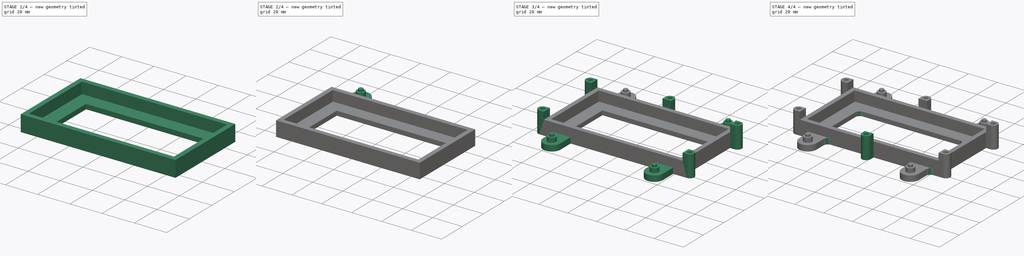
[diagram: build sequence overview — one tinted view per stage of 4, left to right]
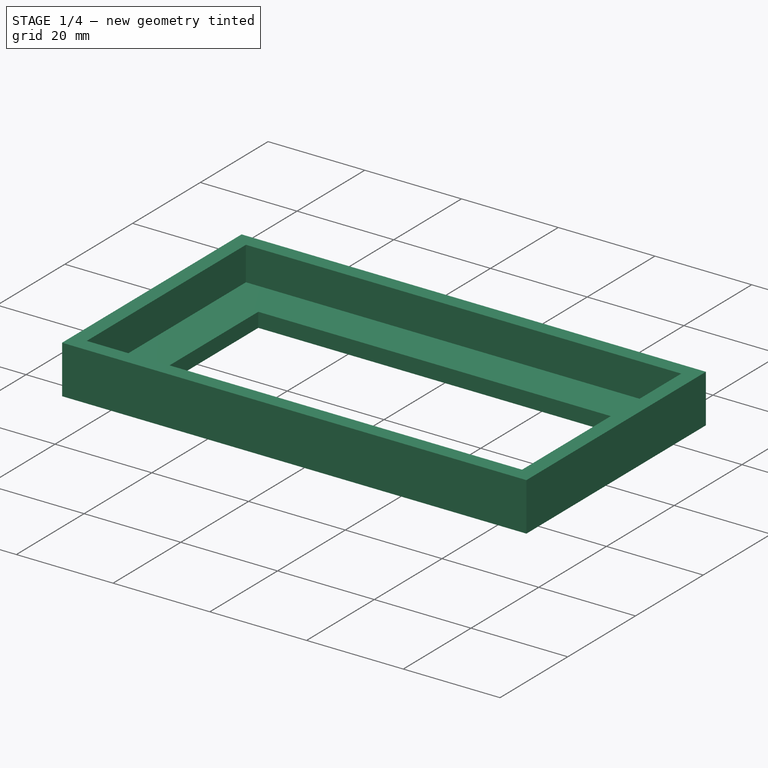
[diagram: stage 1 of 4 — iso view after this stage's code; geometry added in this stage tinted green]
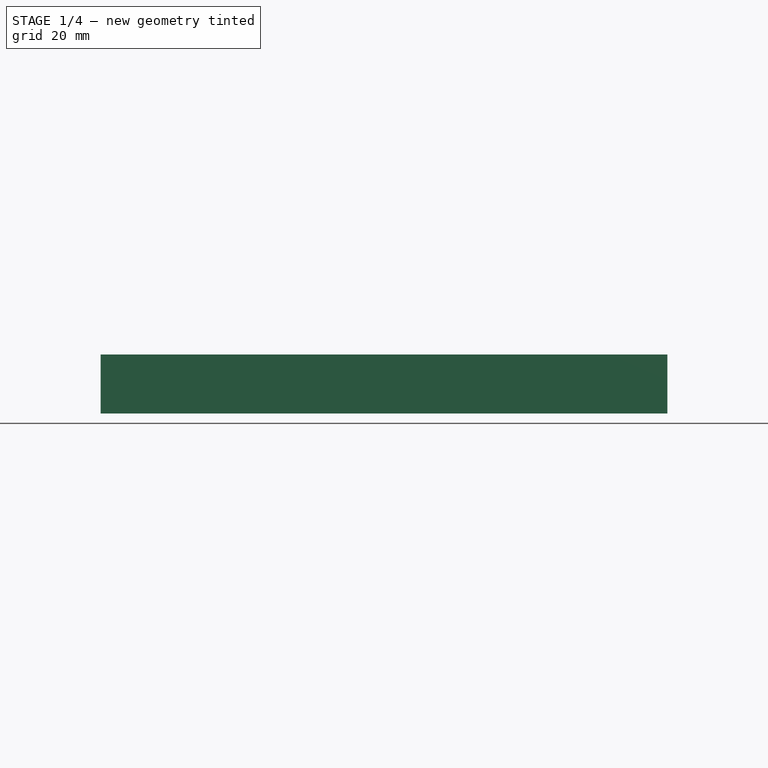
[diagram: stage 1 of 4 — front view after this stage's code; geometry added in this stage tinted green]
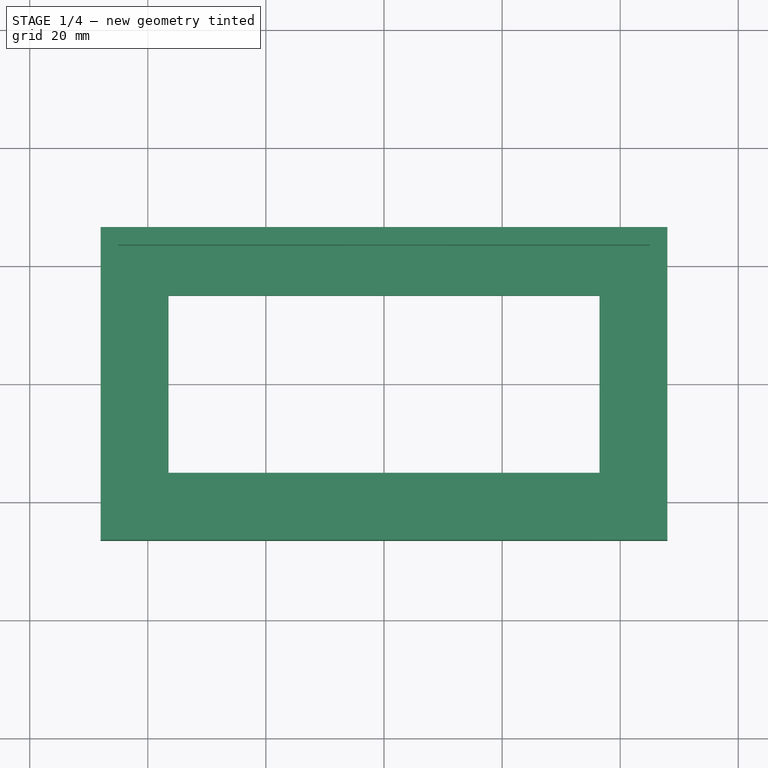
[diagram: stage 1 of 4 — top view after this stage's code; geometry added in this stage tinted green]
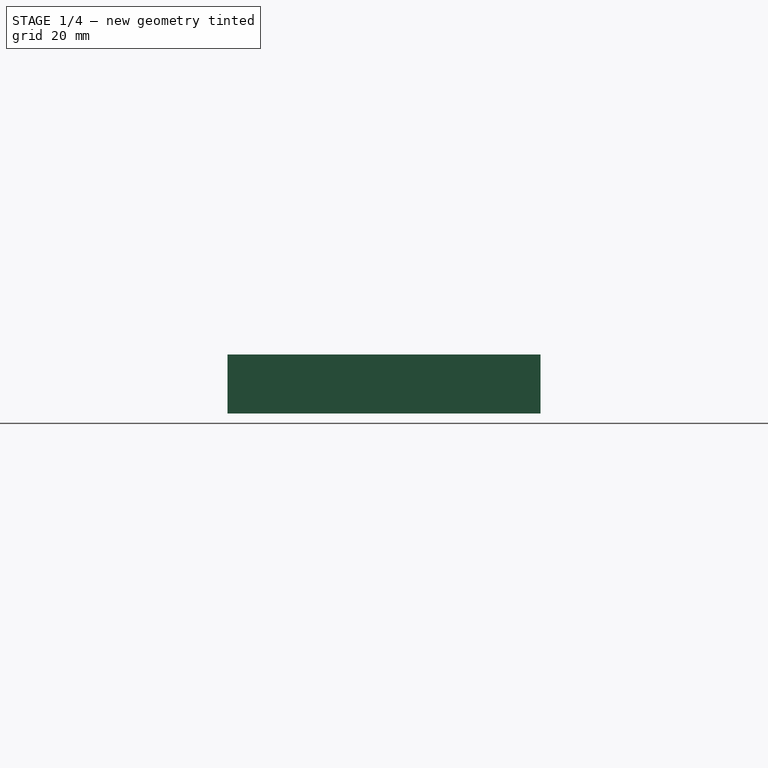
[diagram: stage 1 of 4 — right view after this stage's code; geometry added in this stage tinted green]
FCSTD DOCUMENT  (FreeCAD 0.18R4 (GitTag))
Label: quad_robot_body_bottom
License: All rights reserved
LicenseURL: http://en.wikipedia.org/wiki/All_rights_reserved
objects: Sketcher::SketchObject×7, PartDesign::Pad×6, PartDesign::Mirrored×3, PartDesign::Pocket×1, PartDesign::MultiTransform×1, PartDesign::Fillet×1, PartDesign::Body×1, App::Part×1
note: 27 computed .brp shape members not serialized (recipe doc carries the construction recipe); baked Part::Feature solids carry a one-line shape summary decoded from their .brp

FEATURE [Sketcher::SketchObject] Sketch
  MapMode = 5
  Support = -> [XY_Plane001]
  sketch-geometry (8):
    g0: LineSegment StartX=-48 StartY=26.5 StartZ=0 EndX=48 EndY=26.5 EndZ=0
    g1: LineSegment StartX=48 StartY=26.5 StartZ=0 EndX=48 EndY=-26.5 EndZ=0
    g2: LineSegment StartX=48 StartY=-26.5 StartZ=0 EndX=-48 EndY=-26.5 EndZ=0
    g3: LineSegment StartX=-48 StartY=-26.5 StartZ=0 EndX=-48 EndY=26.5 EndZ=0
    g4: LineSegment StartX=-36.5 StartY=15 StartZ=0 EndX=36.5 EndY=15 EndZ=0
    g5: LineSegment StartX=36.5 StartY=15 StartZ=0 EndX=36.5 EndY=-15 EndZ=0
    g6: LineSegment StartX=36.5 StartY=-15 StartZ=0 EndX=-36.5 EndY=-15 EndZ=0
    g7: LineSegment StartX=-36.5 StartY=-15 StartZ=0 EndX=-36.5 EndY=15 EndZ=0
  constraints (22):
    c: Coincident(g0,g1)
    c: Coincident(g1,g2)
    c: Coincident(g2,g3)
    c: Coincident(g3,g0)
    c: Horizontal(g0)
    c: Horizontal(g2)
    c: Vertical(g1)
    c: Vertical(g3)
    c: Symmetric(g0,g1,g-1)
    c: DistanceX(g0,g0) = 96
    c: DistanceY(g1,g1) = 53
    c: Coincident(g4,g5)
    c: Coincident(g5,g6)
    c: Coincident(g6,g7)
    c: Coincident(g7,g4)
    c: Horizontal(g4)
    c: Horizontal(g6)
    c: Vertical(g5)
    c: Vertical(g7)
    c: Symmetric(g4,g5,g-1)
    c: DistanceX(g4,g4) = 73
    c: DistanceY(g5,g5) = 30
FEATURE [PartDesign::Pad] Pad
  Length = 10
  Length2 = 100
  Profile = -> Sketch
  Refine = true
  Type = 0
FEATURE [Sketcher::SketchObject] Sketch001
  MapMode = 5
  Placement = pos=(0,0,10) rot=(0,0,1;0rad)
  Support = -> [Pad]
  sketch-geometry (4):
    g0: LineSegment StartX=-45 StartY=23.5 StartZ=0 EndX=45 EndY=23.5 EndZ=0
    g1: LineSegment StartX=45 StartY=23.5 StartZ=0 EndX=45 EndY=-23.5 EndZ=0
    g2: LineSegment StartX=45 StartY=-23.5 StartZ=0 EndX=-45 EndY=-23.5 EndZ=0
    g3: LineSegment StartX=-45 StartY=-23.5 StartZ=0 EndX=-45 EndY=23.5 EndZ=0
  constraints (11):
    c: Coincident(g0,g1)
    c: Coincident(g1,g2)
    c: Coincident(g2,g3)
    c: Coincident(g3,g0)
    c: Horizontal(g0)
    c: Horizontal(g2)
    c: Vertical(g1)
    c: Vertical(g3)
    c: DistanceX(g0,g0) = 90
    c: DistanceY(g1,g1) = 47
    c: Symmetric(g0,g1,g-1)
FEATURE [PartDesign::Pocket] Pocket
  BaseFeature = -> Pad
  Length = 7
  Length2 = 100
  Profile = -> Sketch001
  Refine = true
  Type = 0
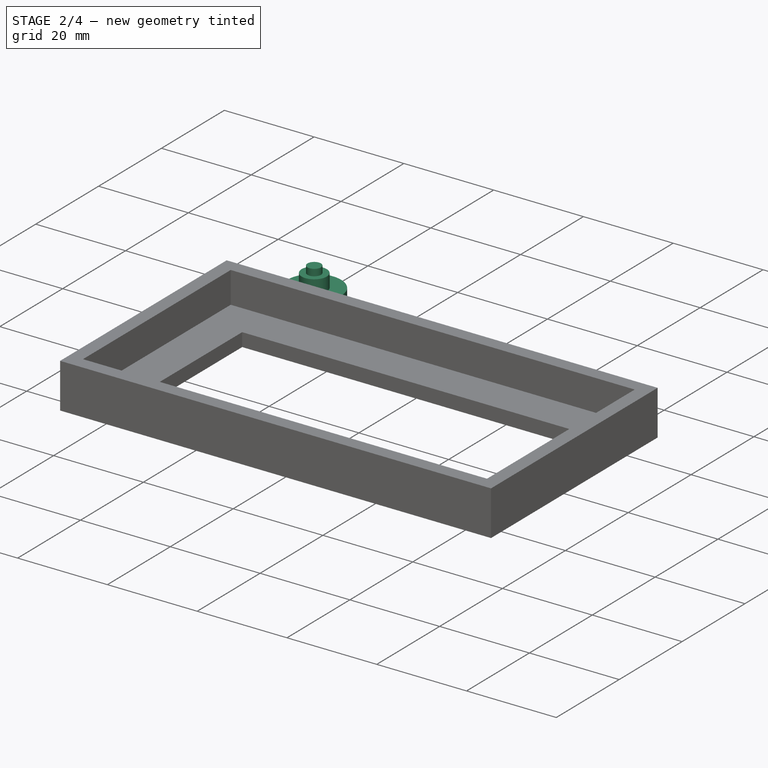
[diagram: stage 2 of 4 — iso view after this stage's code; geometry added in this stage tinted green]
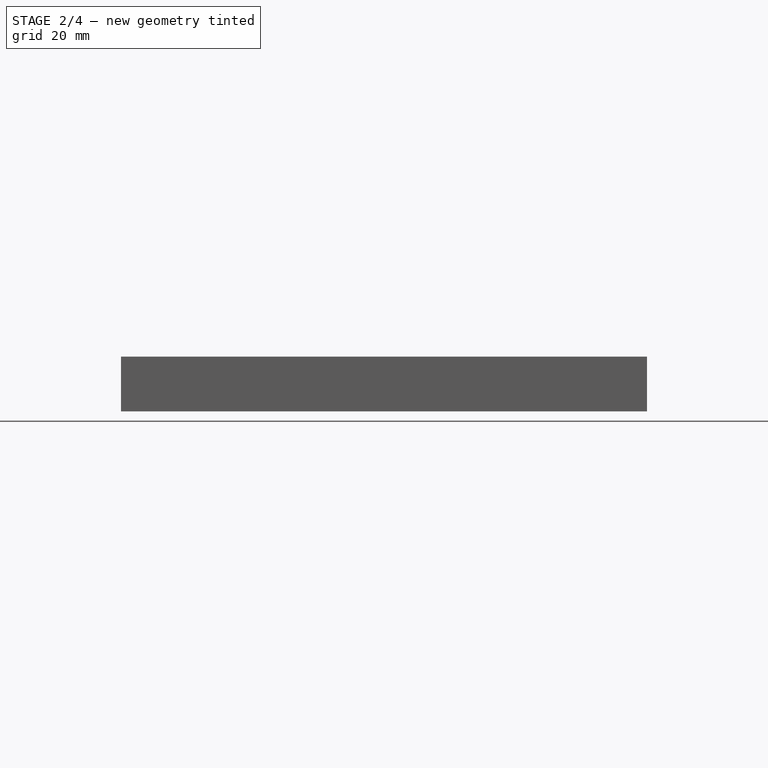
[diagram: stage 2 of 4 — front view after this stage's code; geometry added in this stage tinted green]
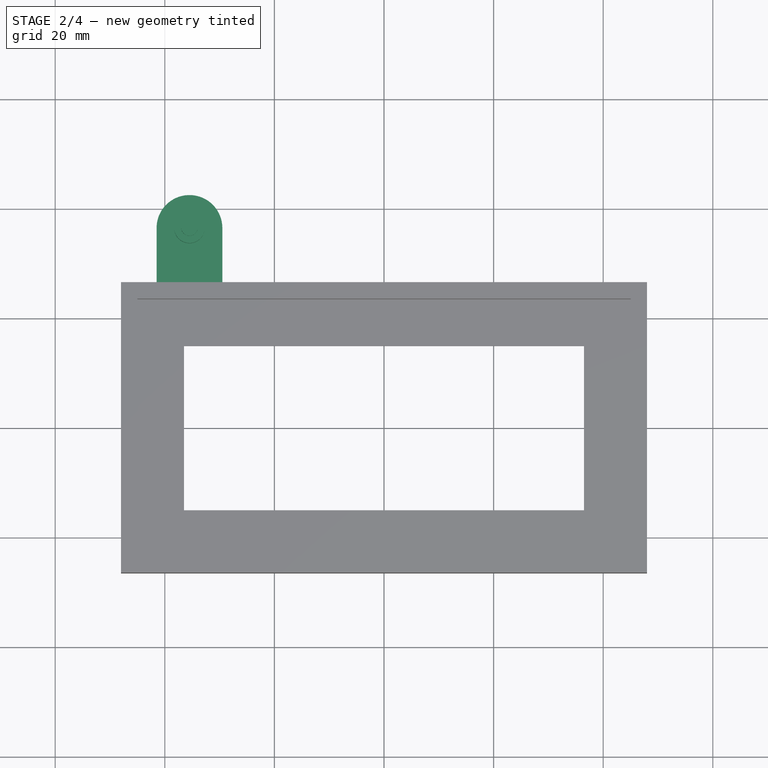
[diagram: stage 2 of 4 — top view after this stage's code; geometry added in this stage tinted green]
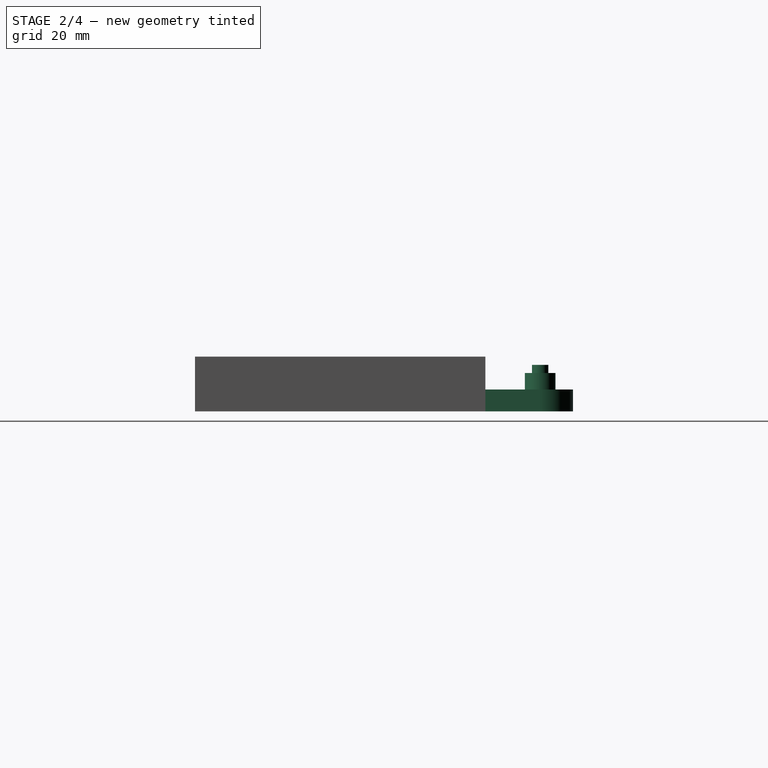
[diagram: stage 2 of 4 — right view after this stage's code; geometry added in this stage tinted green]
FEATURE [Sketcher::SketchObject] Sketch002
  MapMode = 5
  Support = -> [XY_Plane001]
  sketch-geometry (4):
    g0: ArcOfCircle CenterX=-35.5 CenterY=36.5 CenterZ=0 NormalX=0 NormalY=0 NormalZ=1 AngleXU=0 Radius=6 StartAngle=3.41327e-08 EndAngle=3.14159
    g1: LineSegment StartX=-41.5 StartY=36.5 StartZ=0 EndX=-41.5 EndY=24.5 EndZ=0
    g2: LineSegment StartX=-41.5 StartY=24.5 StartZ=0 EndX=-29.5 EndY=24.5 EndZ=0
    g3: LineSegment StartX=-29.5 StartY=24.5 StartZ=0 EndX=-29.5 EndY=36.5 EndZ=0
  constraints (12):
    c: Tangent(g0,g1) = -1.5708
    c: Coincident(g1,g2)
    c: Horizontal(g2)
    c: Coincident(g2,g3)
    c: Coincident(g3,g0)
    c: Vertical(g3)
    c: Tangent(g3,g0)
    c: DistanceX(g0,g-1) = 35.5
    c: DistanceY(g-1,g0) = 36.5
    c: Vertical(g1)
    c: Radius(g0) = 6
    c: DistanceY(g3,g3) = 12
FEATURE [PartDesign::Pad] Pad001
  BaseFeature = -> Pocket
  Length = 4
  Length2 = 100
  Profile = -> Sketch002
  Refine = true
  Type = 0
FEATURE [Sketcher::SketchObject] Sketch003
  ExternalGeometry = -> [Pad001]
  MapMode = 5
  Placement = pos=(0,0,4) rot=(0,0,1;0rad)
  Support = -> [Pad001]
  sketch-geometry (1):
    g0: Circle CenterX=-35.5 CenterY=36.5 CenterZ=0 NormalX=0 NormalY=0 NormalZ=1 AngleXU=0 Radius=2.8
  constraints (2):
    c: Coincident(g0,g-3)
    c: Radius(g0) = 2.8
FEATURE [PartDesign::Pad] Pad002
  BaseFeature = -> Pad001
  Length = 3
  Length2 = 100
  Profile = -> Sketch003
  Refine = true
  Type = 0
FEATURE [Sketcher::SketchObject] Sketch004
  ExternalGeometry = -> [Pad002]
  MapMode = 5
  Placement = pos=(0,0,7) rot=(0,0,1;0rad)
  Support = -> [Pad002]
  sketch-geometry (1):
    g0: Circle CenterX=-35.5 CenterY=36.5 CenterZ=0 NormalX=0 NormalY=0 NormalZ=1 AngleXU=0 Radius=1.5
  constraints (2):
    c: Coincident(g0,g-3)
    c: Radius(g0) = 1.5
FEATURE [PartDesign::Pad] Pad003
  BaseFeature = -> Pad002
  Length = 1.5
  Length2 = 100
  Profile = -> Sketch004
  Refine = true
  Type = 0
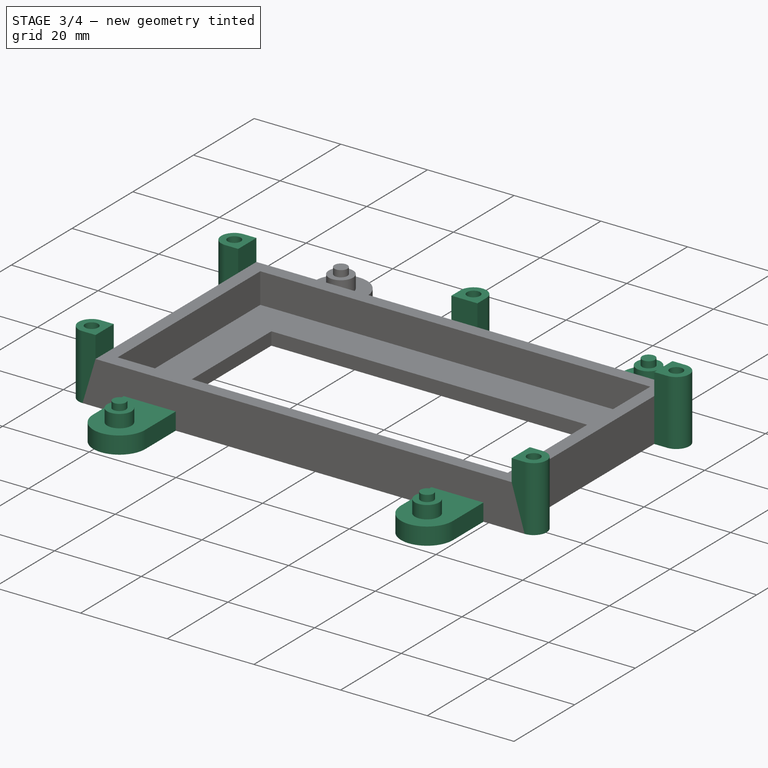
[diagram: stage 3 of 4 — iso view after this stage's code; geometry added in this stage tinted green]
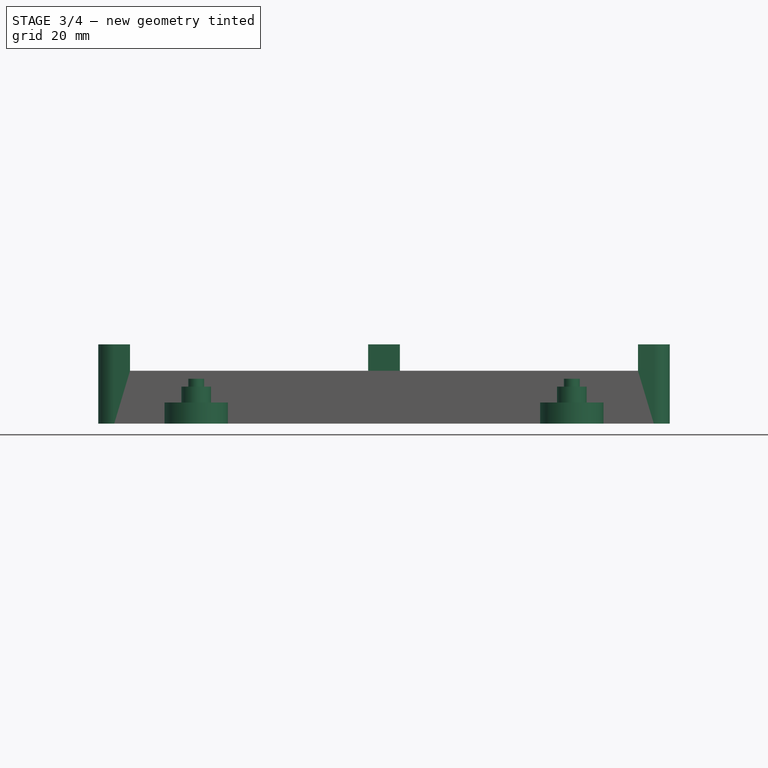
[diagram: stage 3 of 4 — front view after this stage's code; geometry added in this stage tinted green]
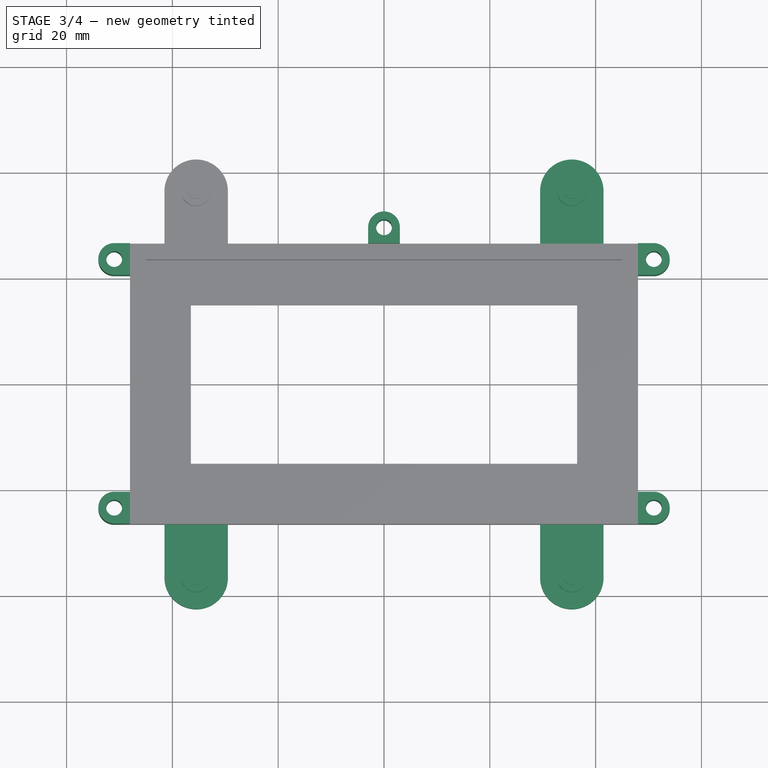
[diagram: stage 3 of 4 — top view after this stage's code; geometry added in this stage tinted green]
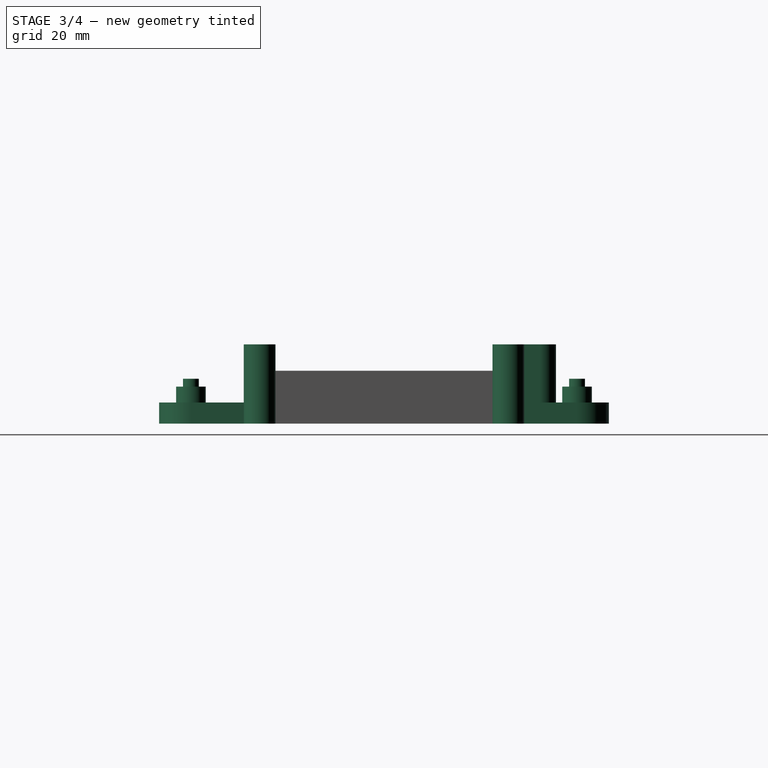
[diagram: stage 3 of 4 — right view after this stage's code; geometry added in this stage tinted green]
FEATURE [Sketcher::SketchObject] Sketch005
  ExternalGeometry = -> [Pad003]
  MapMode = 5
  Support = -> [XY_Plane001]
  sketch-geometry (6):
    g0: LineSegment StartX=-48 StartY=26.5 StartZ=0 EndX=-51 EndY=26.5 EndZ=0
    g1: LineSegment [constr] StartX=-51 StartY=26.5 StartZ=0 EndX=-51 EndY=20.5 EndZ=0
    g2: LineSegment StartX=-51 StartY=20.5 StartZ=0 EndX=-48 EndY=20.5 EndZ=0
    g3: LineSegment StartX=-48 StartY=20.5 StartZ=0 EndX=-48 EndY=26.5 EndZ=0
    g4: ArcOfCircle CenterX=-51 CenterY=23.5 CenterZ=0 NormalX=0 NormalY=0 NormalZ=1 AngleXU=0 Radius=3 StartAngle=1.5708 EndAngle=4.71239
    g5: Circle CenterX=-51 CenterY=23.5 CenterZ=0 NormalX=0 NormalY=0 NormalZ=1 AngleXU=0 Radius=1.5
  constraints (16):
    c: Coincident(g0,g1)
    c: Coincident(g1,g2)
    c: Coincident(g2,g3)
    c: Coincident(g3,g0)
    c: Horizontal(g0)
    c: Horizontal(g2)
    c: Vertical(g1)
    c: Vertical(g3)
    c: Coincident(g0,g-3)
    c: PointOnObject(g4,g1)
    c: Coincident(g4,g1)
    c: Coincident(g4,g0)
    c: Radius(g4) = 3
    c: DistanceX(g0,g0) = 3
    c: Coincident(g5,g4)
    c: Radius(g5) = 1.5
FEATURE [PartDesign::Pad] Pad004
  BaseFeature = -> Pad003
  Length = 15
  Length2 = 100
  Profile = -> Sketch005
  Refine = true
  Type = 0
FEATURE [Sketcher::SketchObject] Sketch006
  ExternalGeometry = -> [Pad004]
  MapMode = 5
  Support = -> [XY_Plane001]
  sketch-geometry (6):
    g0: LineSegment StartX=-3 StartY=26.5 StartZ=0 EndX=3 EndY=26.5 EndZ=0
    g1: LineSegment StartX=3 StartY=26.5 StartZ=0 EndX=3 EndY=29.5 EndZ=0
    g2: LineSegment [constr] StartX=3 StartY=29.5 StartZ=0 EndX=-3 EndY=29.5 EndZ=0
    g3: LineSegment StartX=-3 StartY=29.5 StartZ=0 EndX=-3 EndY=26.5 EndZ=0
    g4: Circle CenterX=0 CenterY=29.5 CenterZ=0 NormalX=0 NormalY=0 NormalZ=1 AngleXU=0 Radius=1.5
    g5: ArcOfCircle CenterX=0 CenterY=29.5 CenterZ=0 NormalX=0 NormalY=0 NormalZ=1 AngleXU=0 Radius=3 StartAngle=2e-16 EndAngle=3.14159
  constraints (16):
    c: Coincident(g0,g1)
    c: Coincident(g1,g2)
    c: Coincident(g2,g3)
    c: Coincident(g3,g0)
    c: Horizontal(g0)
    c: Vertical(g1)
    c: Vertical(g3)
    c: Symmetric(g1,g2,g-2)
    c: Symmetric(g1,g3,g4)
    c: Coincident(g5,g4)
    c: Coincident(g5,g3)
    c: Coincident(g5,g1)
    c: Radius(g5) = 3
    c: DistanceY(g1,g1) = 3
    c: PointOnObject(g0,g-3)
    c: Radius(g4) = 1.5
FEATURE [PartDesign::Pad] Pad005
  BaseFeature = -> Pad004
  Length = 15
  Length2 = 100
  Profile = -> Sketch006
  Refine = true
  Type = 0
FEATURE [PartDesign::Mirrored] Mirrored
  MirrorPlane = -> YZ_Plane001
  Refine = true
FEATURE [PartDesign::Mirrored] Mirrored001
  MirrorPlane = -> XZ_Plane001
  Refine = true
FEATURE [PartDesign::MultiTransform] MultiTransform
  BaseFeature = -> Pad005
  Originals = -> [Pad001,Pad002,Pad003,Pad004]
  Refine = true
  Transformations = -> [Mirrored,Mirrored001]
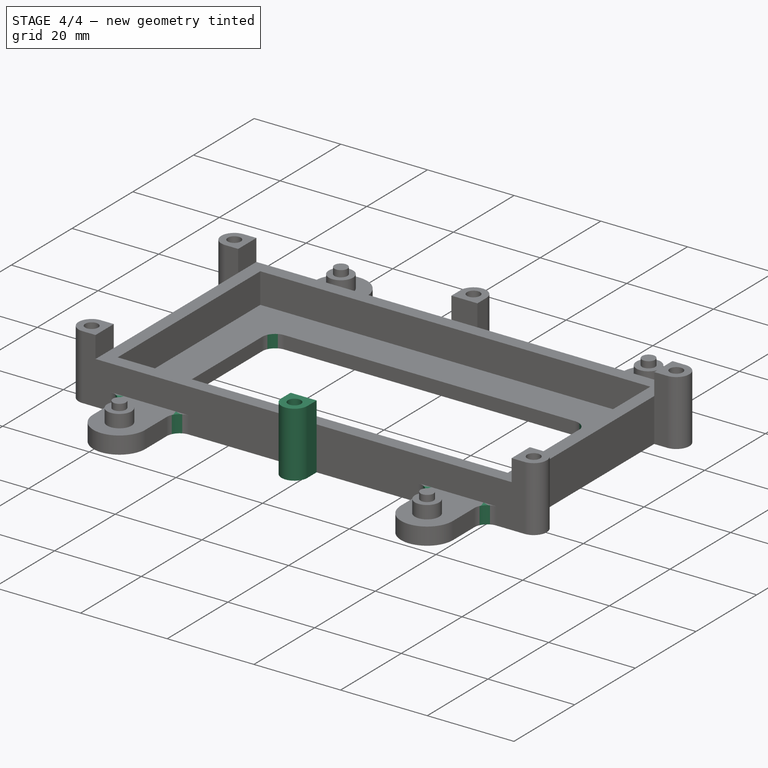
[diagram: stage 4 of 4 — iso view after this stage's code; geometry added in this stage tinted green]
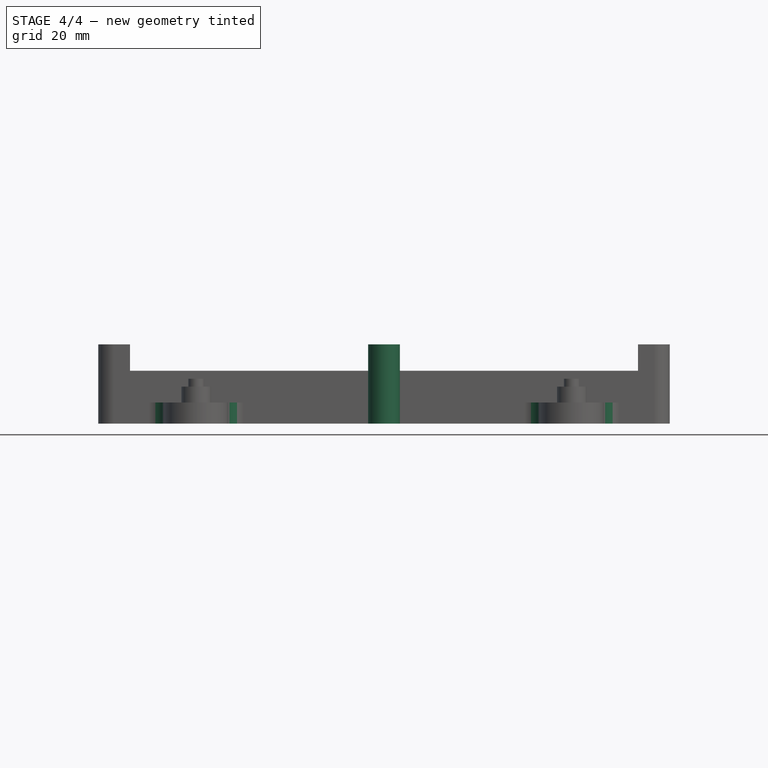
[diagram: stage 4 of 4 — front view after this stage's code; geometry added in this stage tinted green]
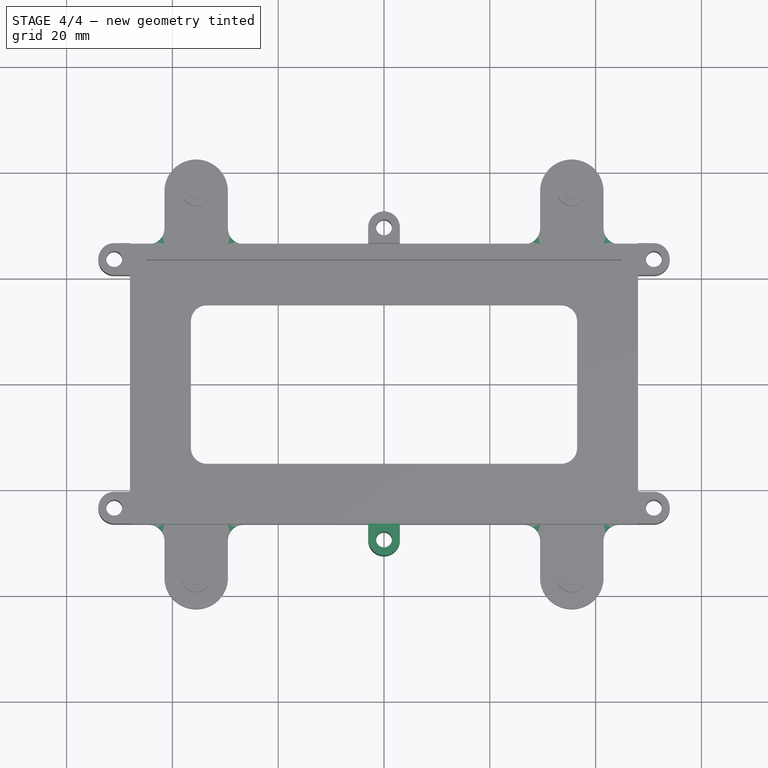
[diagram: stage 4 of 4 — top view after this stage's code; geometry added in this stage tinted green]
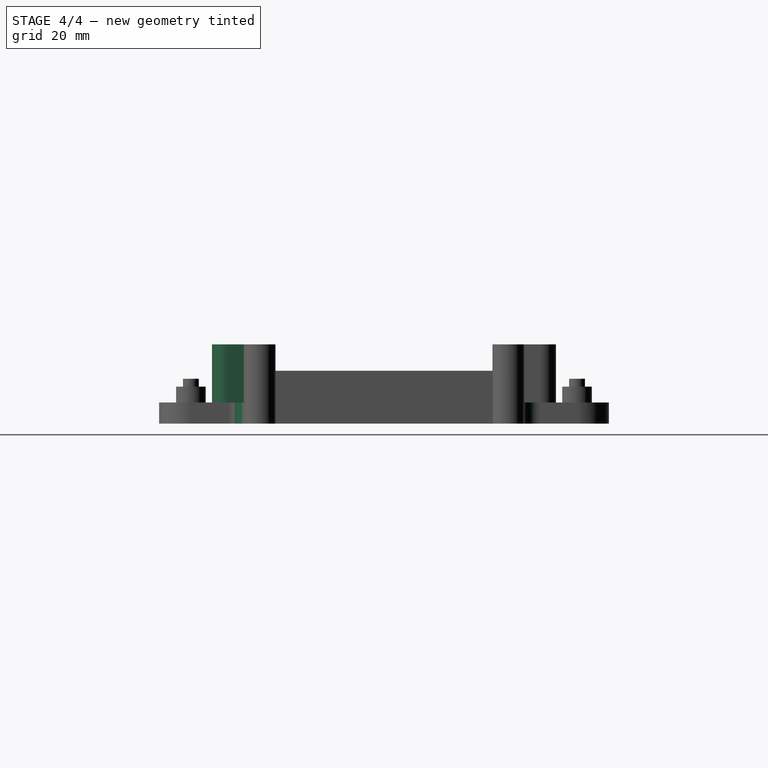
[diagram: stage 4 of 4 — right view after this stage's code; geometry added in this stage tinted green]
FEATURE [PartDesign::Mirrored] Mirrored002
  BaseFeature = -> MultiTransform
  MirrorPlane = -> XZ_Plane001
  Originals = -> [Pad005]
  Refine = true
FEATURE [PartDesign::Fillet] Fillet
  Base = -> Mirrored002 [Edge75,Edge73,Edge58,Edge56,Edge11,Edge13,Edge106,Edge108,Edge175,Edge180,Edge178,Edge176]
  BaseFeature = -> Mirrored002
  Radius = 3
FEATURE [PartDesign::Body] Body
  Group = -> [Sketch,Pad,Sketch001,Pocket,Sketch002,Pad001,Sketch003,Pad002,Sketch004,Pad003,Sketch005,Pad004,Sketch006,Pad005,MultiTransform,Mirrored,Mirrored001,Mirrored002,Fillet]
  Origin = -> Origin001
  Tip = -> Fillet
FEATURE [App::Part] Part  label="quad robot body bottom"
  Group = -> [Body]
  Origin = -> Origin
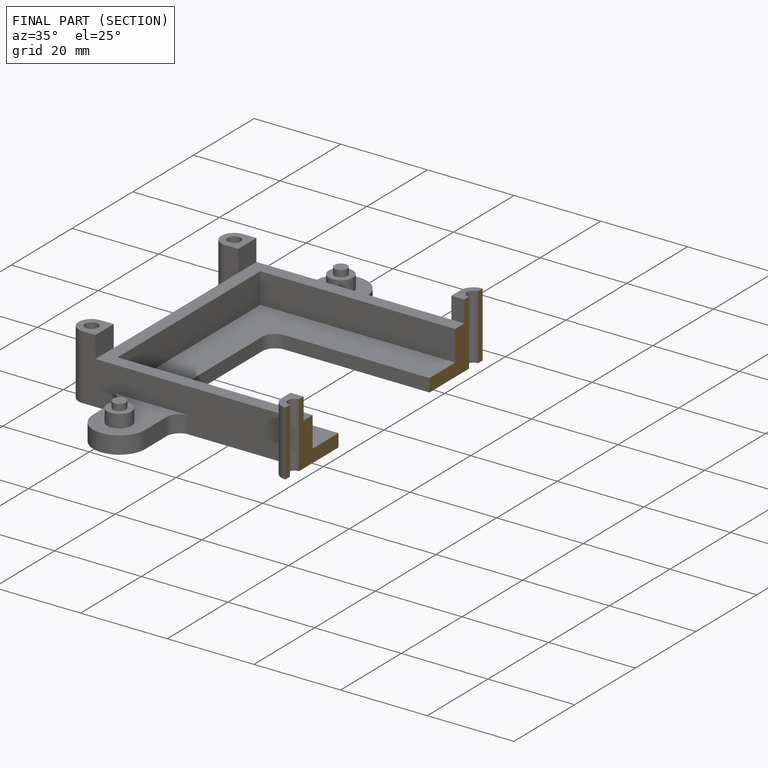
[diagram: finished part — half-section view (interior)]
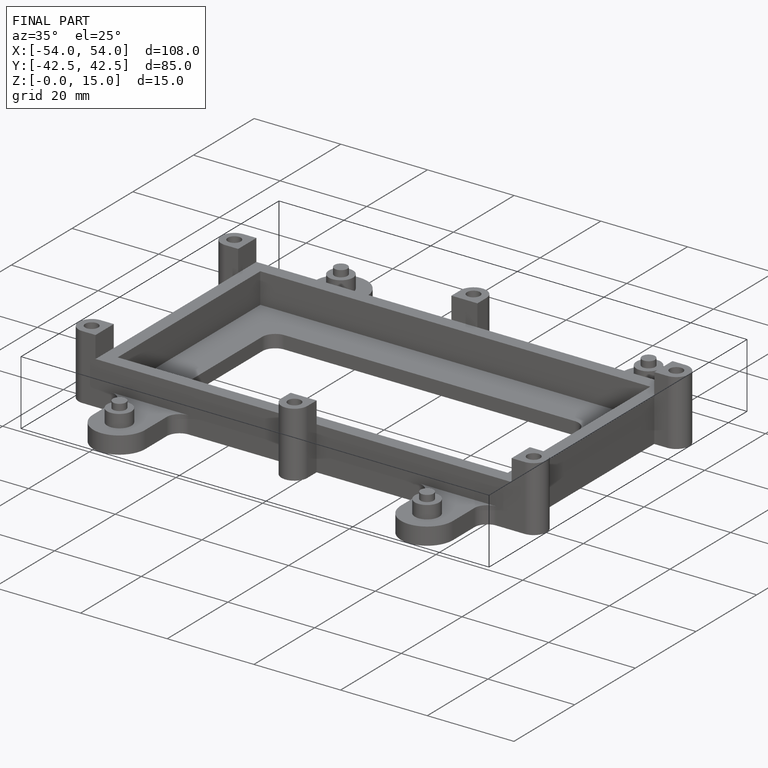
[diagram: finished part — iso view with bounding-box wireframe]
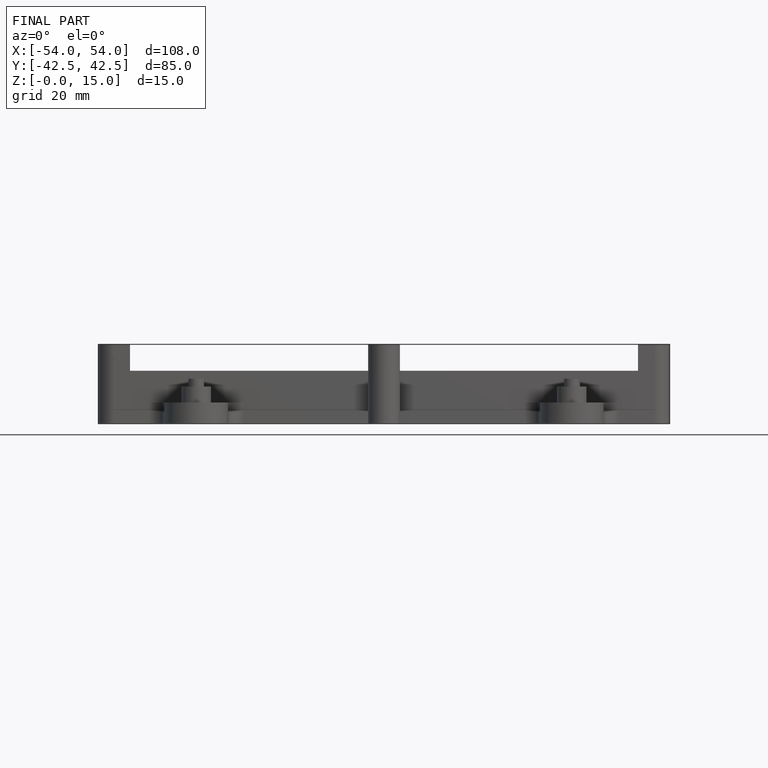
[diagram: finished part — front view with bounding-box wireframe]
